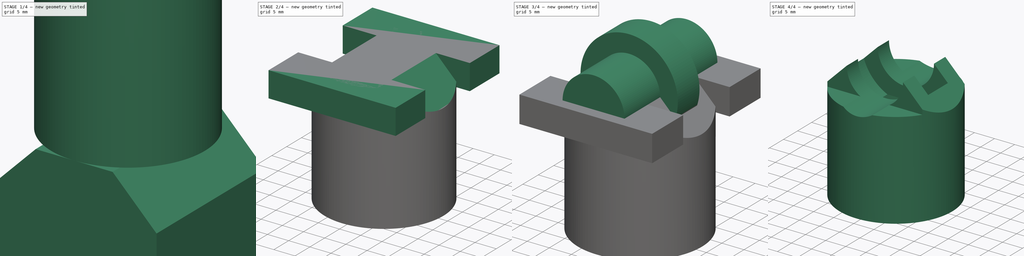
[diagram: build sequence overview — one tinted view per stage of 4, left to right]
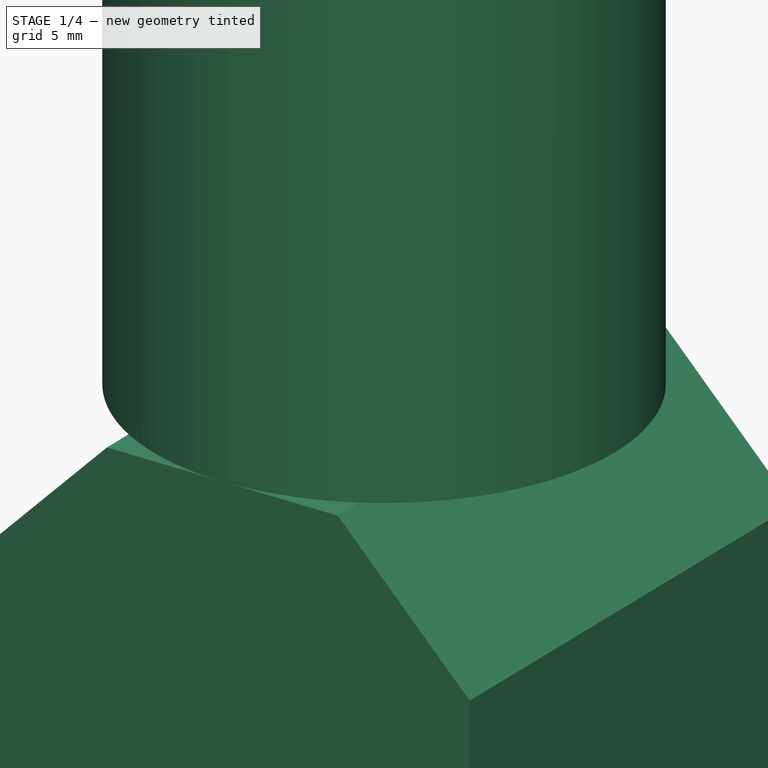
[diagram: stage 1 of 4 — iso view after this stage's code; geometry added in this stage tinted green]
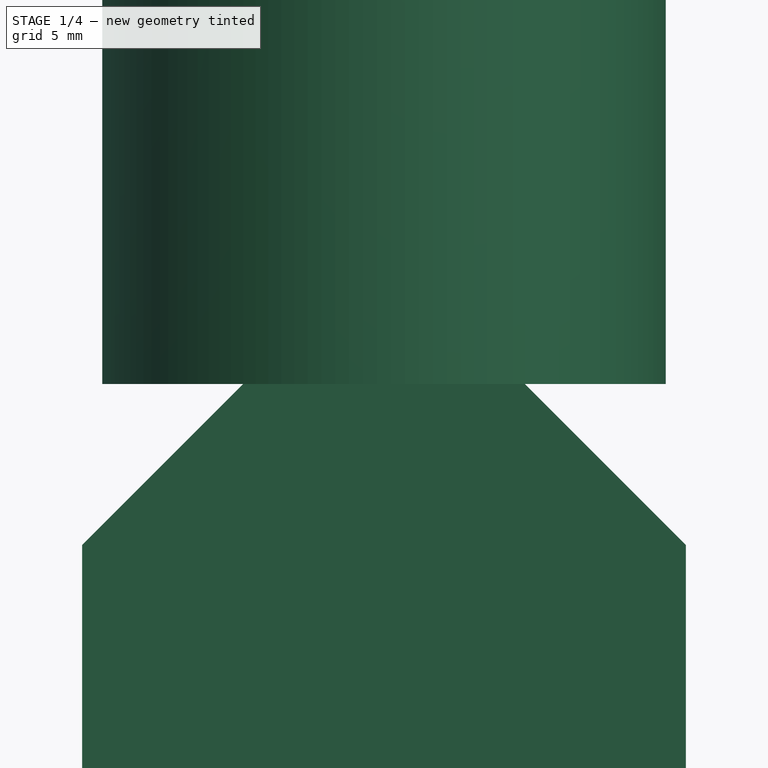
[diagram: stage 1 of 4 — front view after this stage's code; geometry added in this stage tinted green]
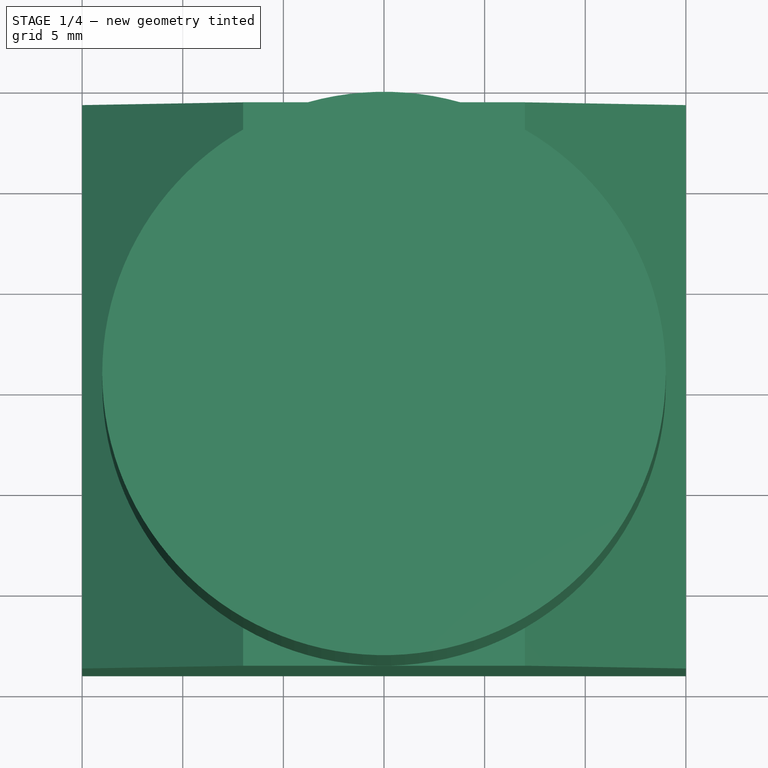
[diagram: stage 1 of 4 — top view after this stage's code; geometry added in this stage tinted green]
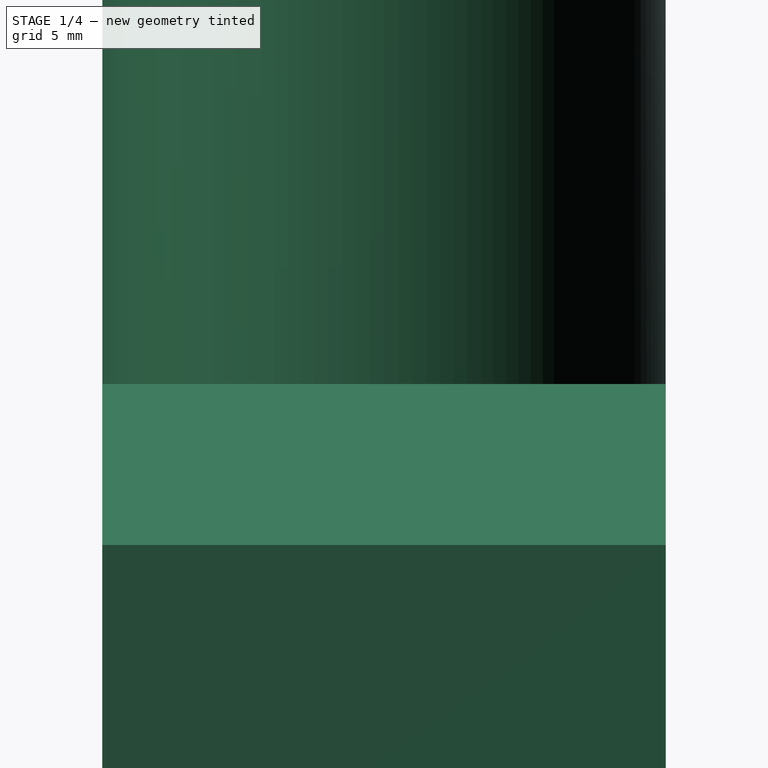
[diagram: stage 1 of 4 — right view after this stage's code; geometry added in this stage tinted green]
FCSTD DOCUMENT  (FreeCAD 0.17R13522 (Git))
Label: connector-bearing-base
License: All rights reserved
LicenseURL: http://en.wikipedia.org/wiki/All_rights_reserved
objects: Part::Cylinder×4, Part::Box×2, Part::MultiFuse×1, Sketcher::SketchObject×1, PartDesign::Pad×1, PartDesign::Body×1, Part::MultiCommon×1, Part::Cut×1
note: 13 computed .brp shape members not serialized (recipe doc carries the construction recipe); baked Part::Feature solids carry a one-line shape summary decoded from their .brp

FEATURE [Part::Cylinder] Cylinder002  label="Cylinder"
  Angle = 360
  AttacherType = Attacher::AttachEngine3D
  Height = 30
  Radius = 14
FEATURE [Sketcher::SketchObject] Sketch001
  MapMode = 5
  Placement = pos=(0,0,0) rot=(1,0,0;1.5708rad)
  Support = -> [XZ_Plane001]
  sketch-geometry (6):
    g0: LineSegment StartX=-7 StartY=0 StartZ=0 EndX=7 EndY=0 EndZ=0
    g1: LineSegment StartX=7 StartY=0 StartZ=0 EndX=15 EndY=-8 EndZ=0
    g2: LineSegment StartX=-15 StartY=-8 StartZ=0 EndX=-7 EndY=0 EndZ=0
    g3: LineSegment StartX=15 StartY=-8 StartZ=0 EndX=15 EndY=-30 EndZ=0
    g4: LineSegment StartX=15 StartY=-30 StartZ=0 EndX=-15 EndY=-30 EndZ=0
    g5: LineSegment StartX=-15 StartY=-30 StartZ=0 EndX=-15 EndY=-8 EndZ=0
  constraints (18):
    c: Coincident(g0,g1)
    c: Coincident(g2,g0)
    c: Horizontal(g0)
    c: DistanceX(g-1,g0) = 7
    c: DistanceX(g0,g0) = 14
    c: DistanceY(g0,g-1) = 0
    c: Coincident(g3,g4)
    c: Coincident(g4,g5)
    c: Horizontal(g4)
    c: Vertical(g3)
    c: Vertical(g5)
    c: Coincident(g5,g2)
    c: Coincident(g3,g1)
    c: DistanceY(g3,g0) = 30
    c: Angle(g1,g3) = 2.35619
    c: Angle(g5,g2) = 2.35619
    c: DistanceX(g4,g4) = 30
    c: DistanceY(g2,g1) = 0
FEATURE [PartDesign::Pad] Pad001
  Length = 14
  Length2 = 14
  Placement = pos=(0,0,0) rot=(1,0,0;1.5708rad)
  Profile = -> Sketch001
  Reversed = true
  Type = 4
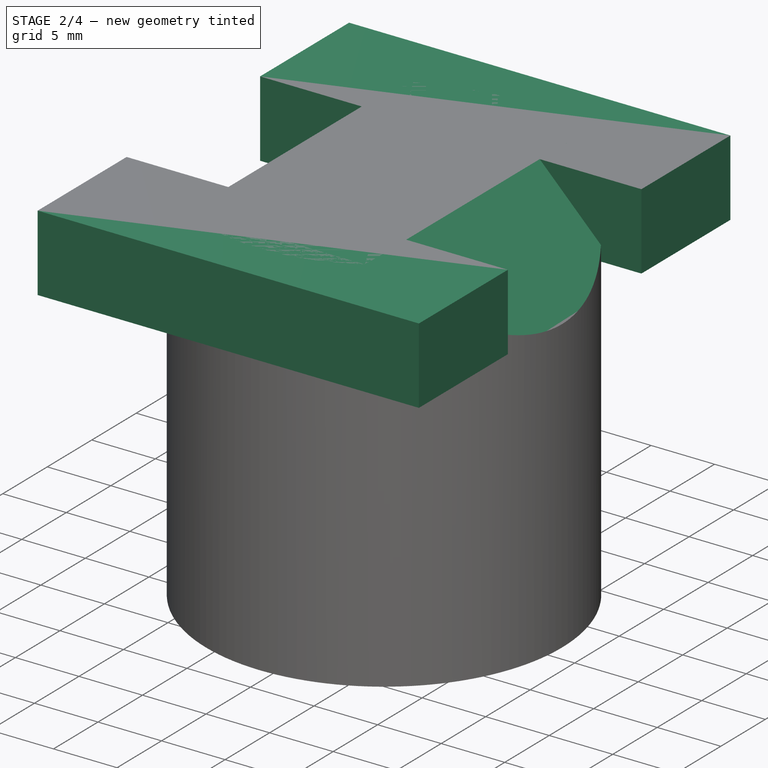
[diagram: stage 2 of 4 — iso view after this stage's code; geometry added in this stage tinted green]
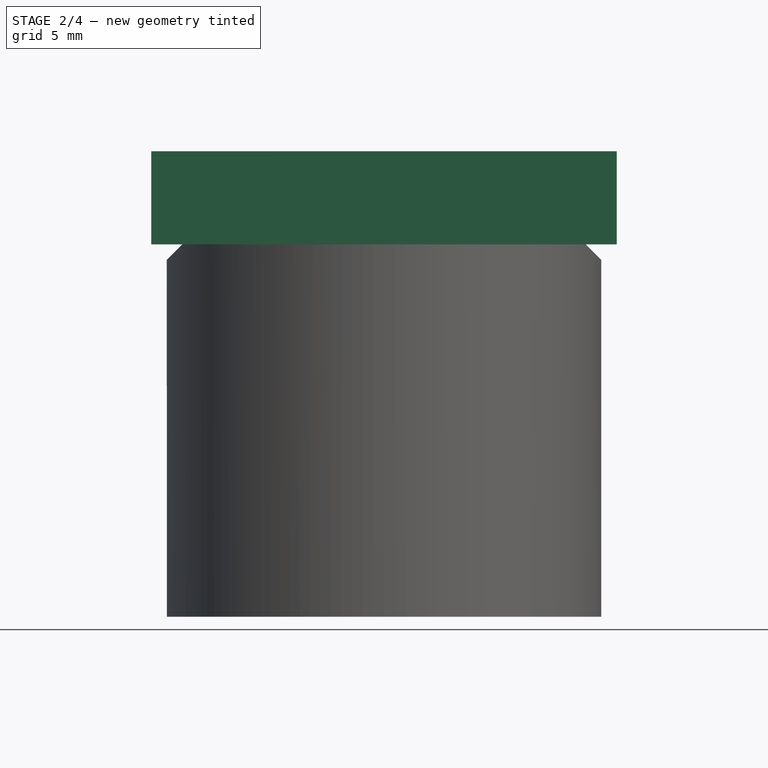
[diagram: stage 2 of 4 — front view after this stage's code; geometry added in this stage tinted green]
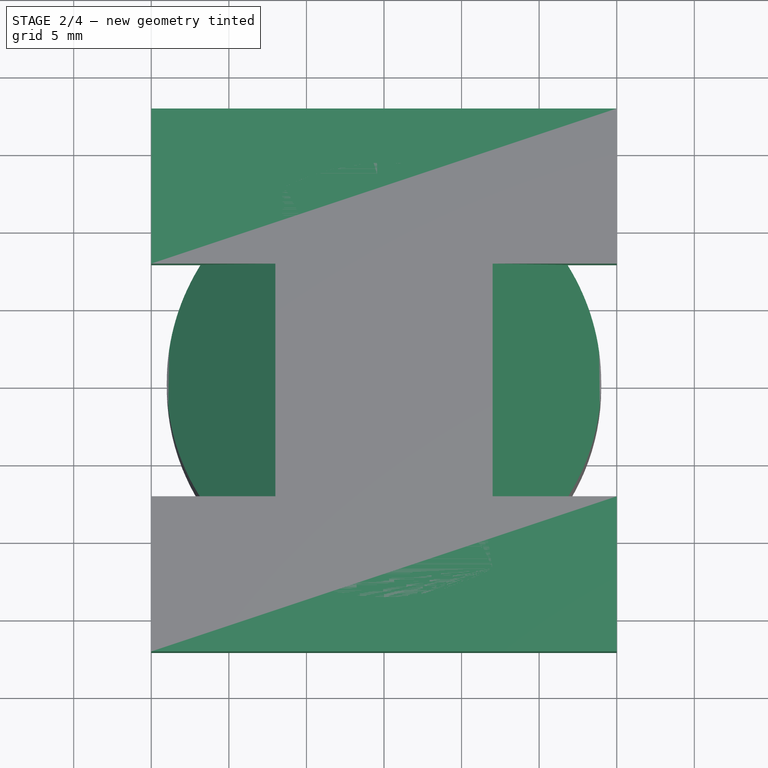
[diagram: stage 2 of 4 — top view after this stage's code; geometry added in this stage tinted green]
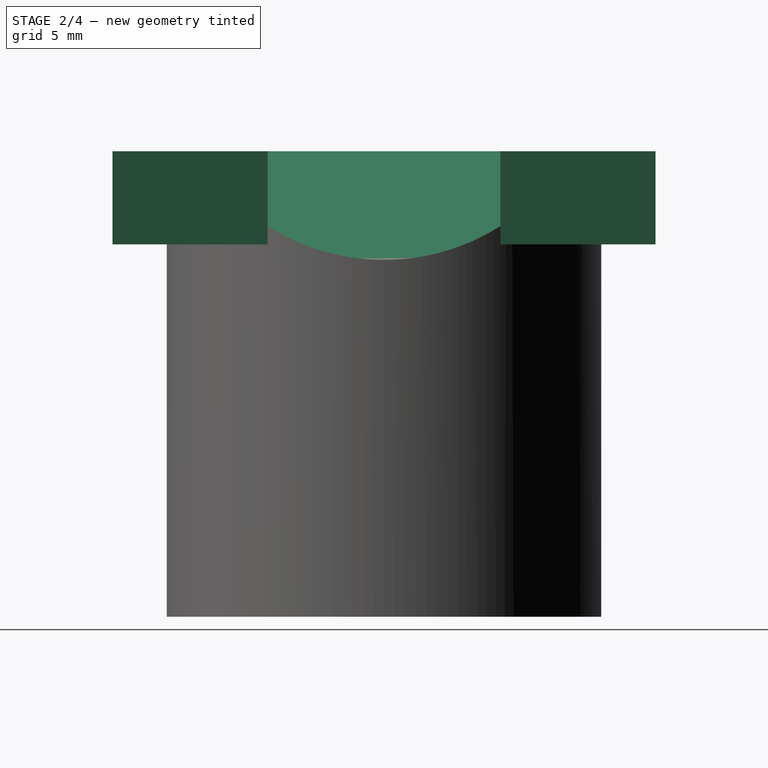
[diagram: stage 2 of 4 — right view after this stage's code; geometry added in this stage tinted green]
FEATURE [Part::Box] Box001  label="Cube001"
  AttacherType = Attacher::AttachEngine3D
  Height = 6
  Length = 30
  Placement = pos=(-15,-17.5,24) rot=(0,0,1;0rad)
  Width = 10
FEATURE [Part::Box] Box002  label="Cube002"
  AttacherType = Attacher::AttachEngine3D
  Height = 6
  Length = 30
  Placement = pos=(-15,7.5,24) rot=(0,0,1;0rad)
  Width = 10
FEATURE [PartDesign::Body] Body001
  Group = -> [Sketch001,Pad001]
  Origin = -> Origin001
  Placement = pos=(0,0,30) rot=(0,0,1;0rad)
  Tip = -> Pad001
FEATURE [Part::MultiCommon] Common
  Shapes = -> [Cylinder002,Body001]
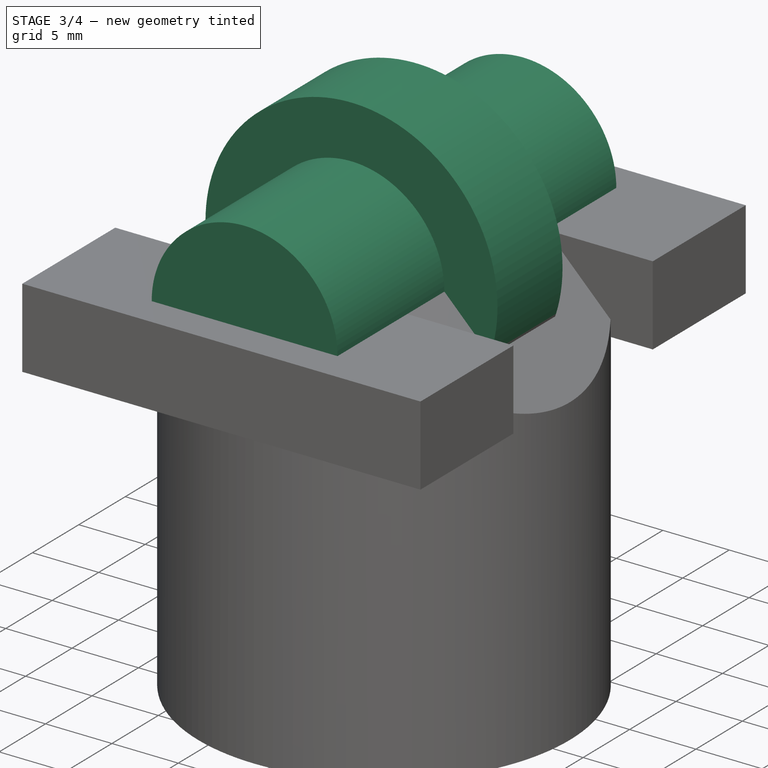
[diagram: stage 3 of 4 — iso view after this stage's code; geometry added in this stage tinted green]
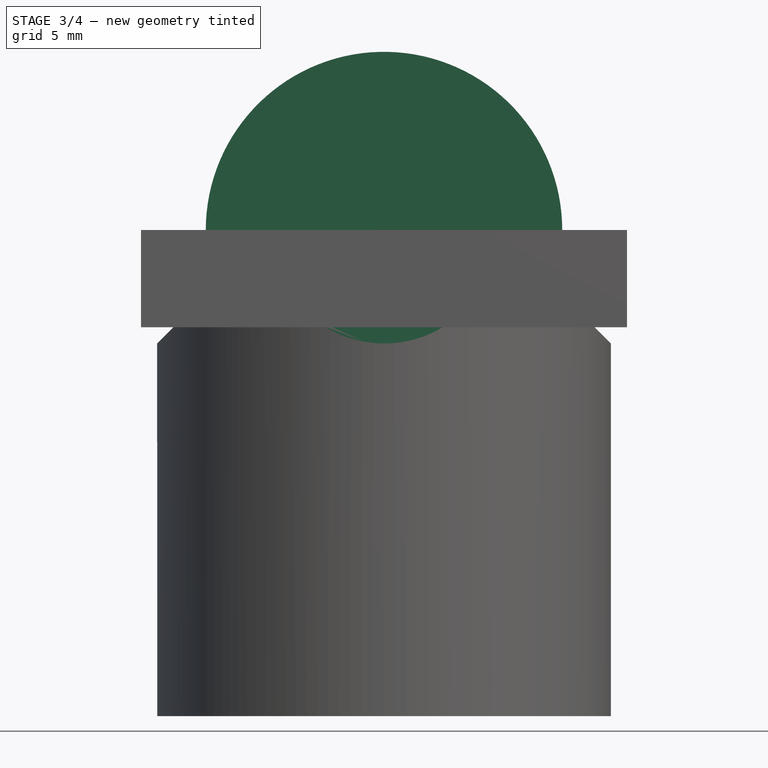
[diagram: stage 3 of 4 — front view after this stage's code; geometry added in this stage tinted green]
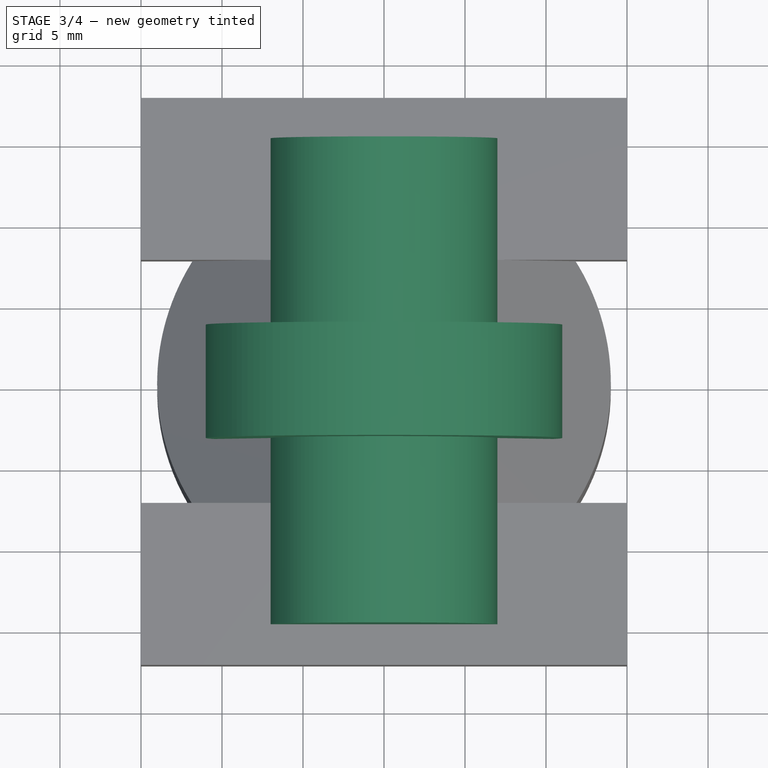
[diagram: stage 3 of 4 — top view after this stage's code; geometry added in this stage tinted green]
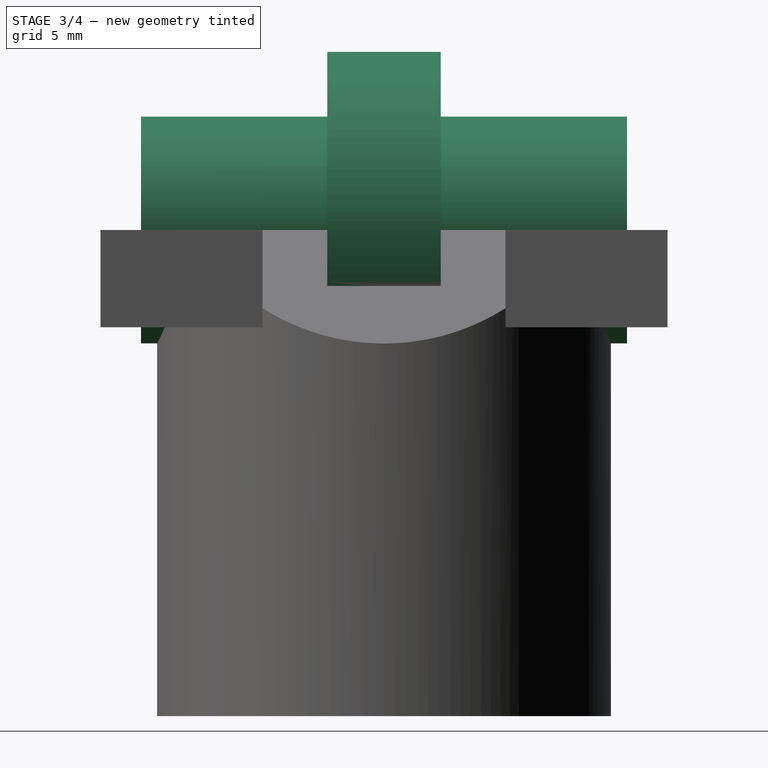
[diagram: stage 3 of 4 — right view after this stage's code; geometry added in this stage tinted green]
FEATURE [Part::Cylinder] Cylinder  label="Pipe"
  Angle = 360
  AttacherType = Attacher::AttachEngine3D
  Height = 20
  Radius = 10
FEATURE [Part::Cylinder] Cylinder001  label="Bearing"
  Angle = 360
  AttacherType = Attacher::AttachEngine3D
  Height = 7
  Placement = pos=(0,-3.5,30) rot=(0,0.707107,0.707107;3.14159rad)
  Radius = 11
FEATURE [Part::Cylinder] Cylinder003  label="Cylinder001"
  Angle = 360
  AttacherType = Attacher::AttachEngine3D
  Height = 30
  Placement = pos=(0,-15,30) rot=(-1,0,0;1.5708rad)
  Radius = 7
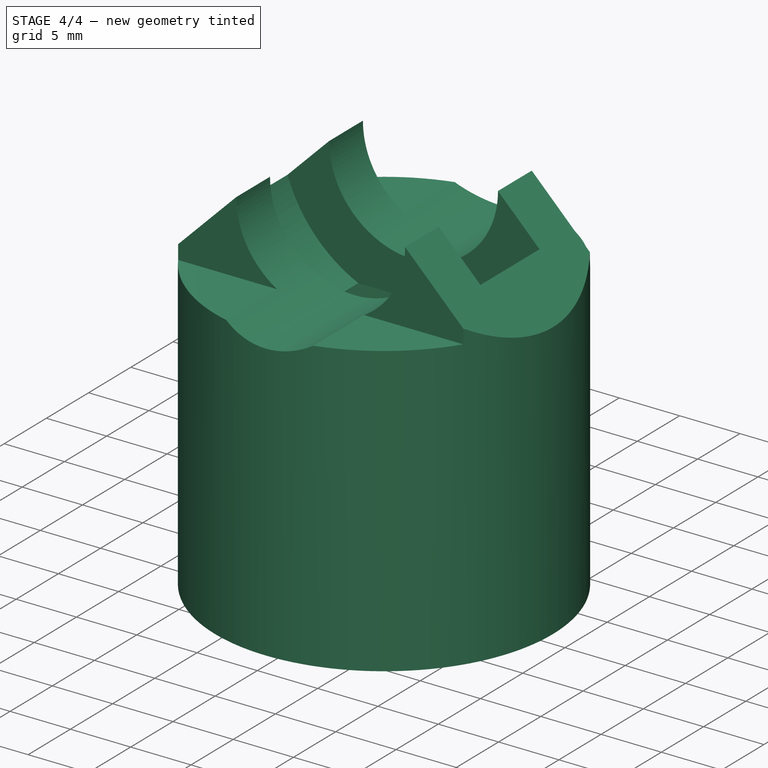
[diagram: stage 4 of 4 — iso view after this stage's code; geometry added in this stage tinted green]
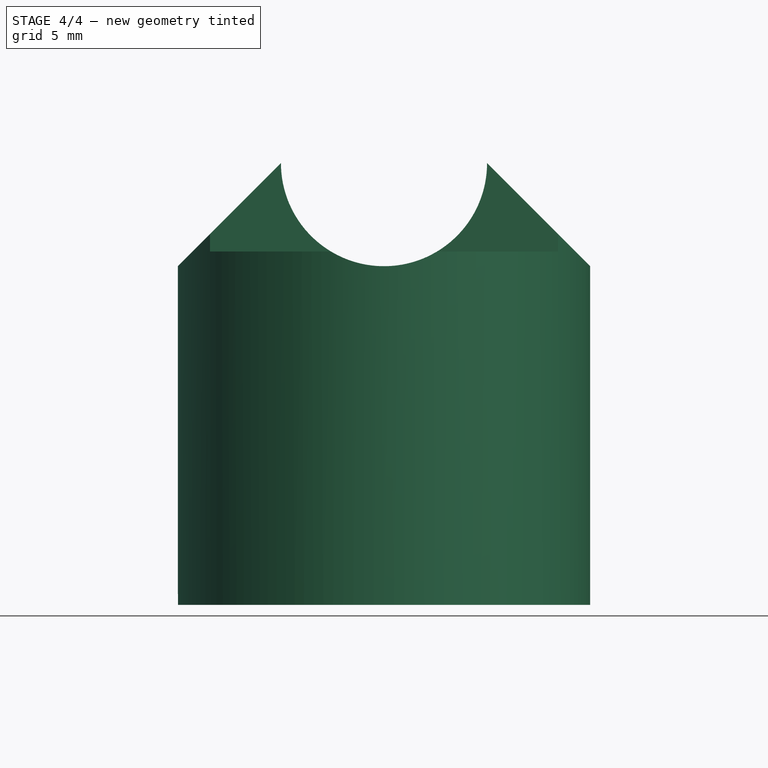
[diagram: stage 4 of 4 — front view after this stage's code; geometry added in this stage tinted green]
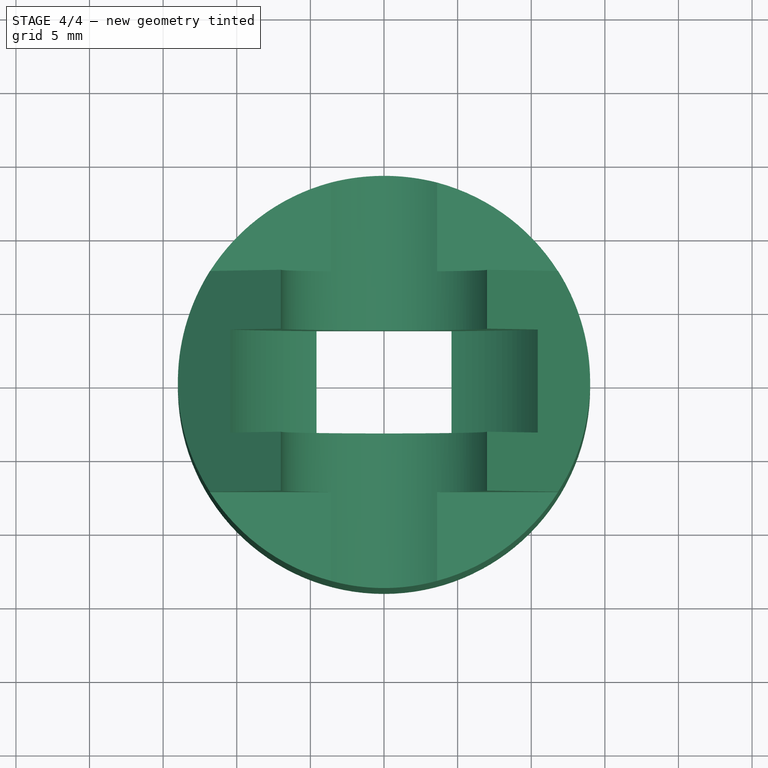
[diagram: stage 4 of 4 — top view after this stage's code; geometry added in this stage tinted green]
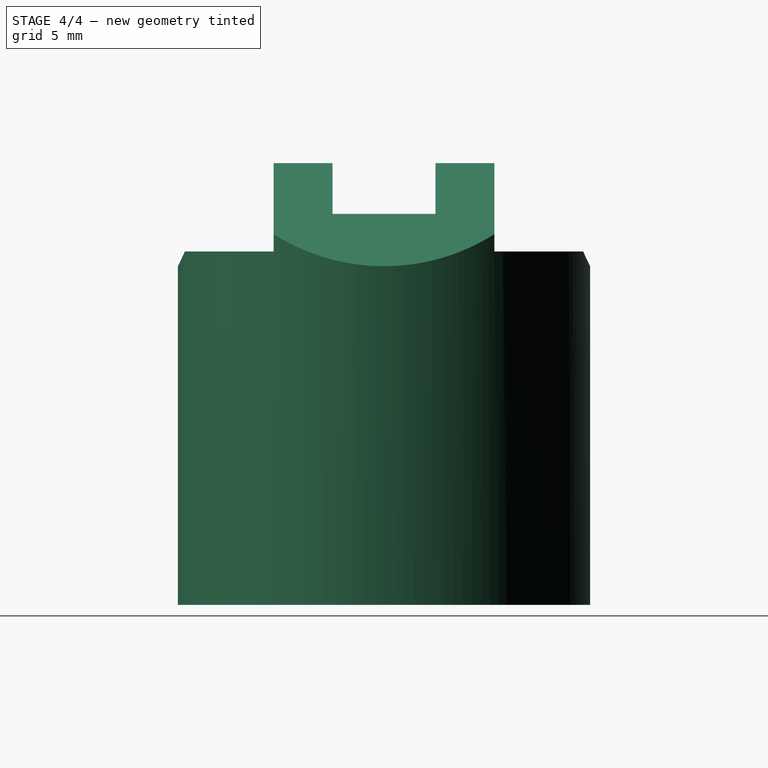
[diagram: stage 4 of 4 — right view after this stage's code; geometry added in this stage tinted green]
FEATURE [Part::MultiFuse] Fusion  label="Negative Fusion"
  Shapes = -> [Cylinder,Cylinder001,Cylinder003,Box001,Box002]
FEATURE [Part::Cut] Cut
  Base = -> Common
  Tool = -> Fusion
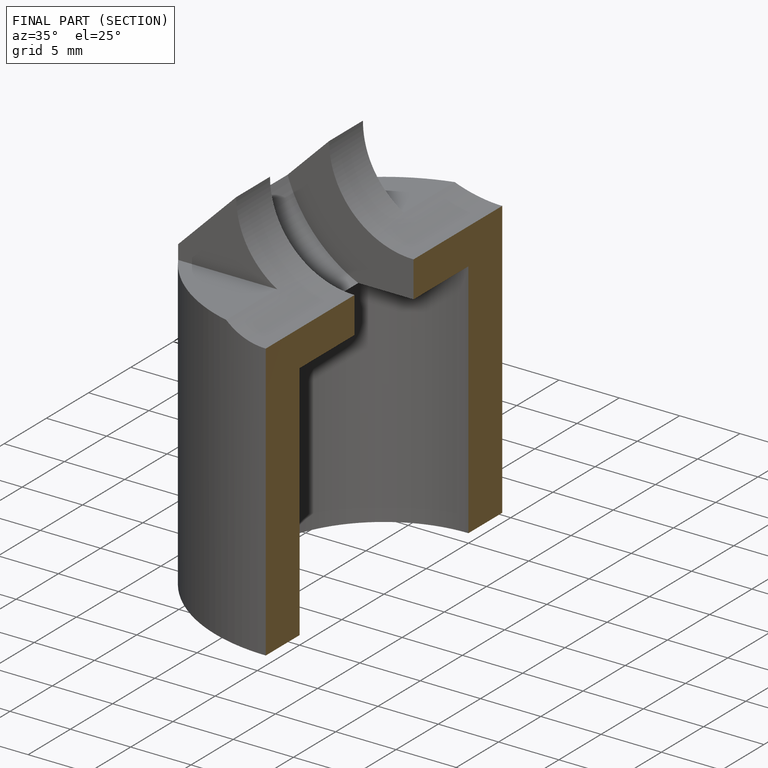
[diagram: finished part — half-section view (interior)]
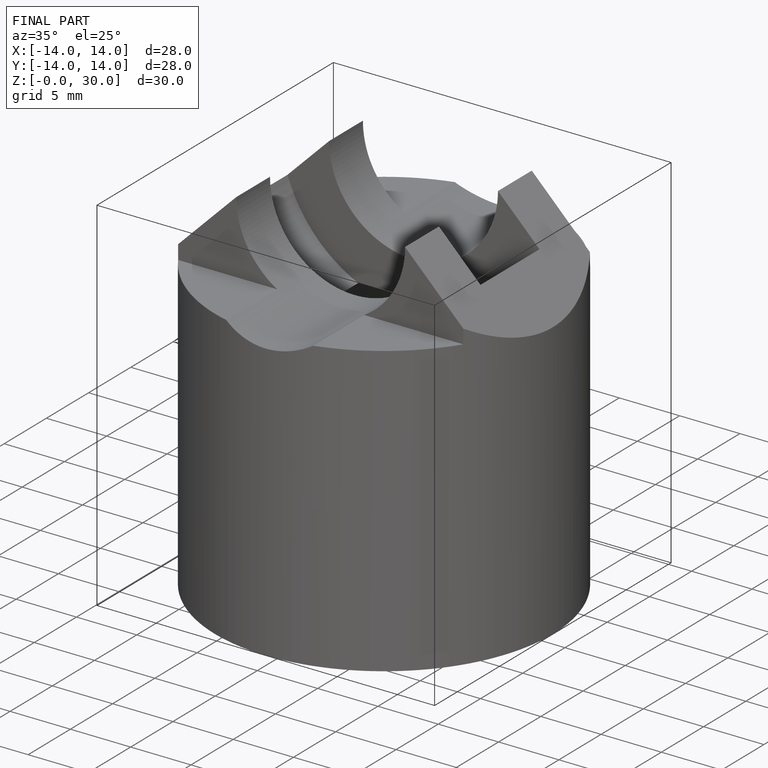
[diagram: finished part — iso view with bounding-box wireframe]
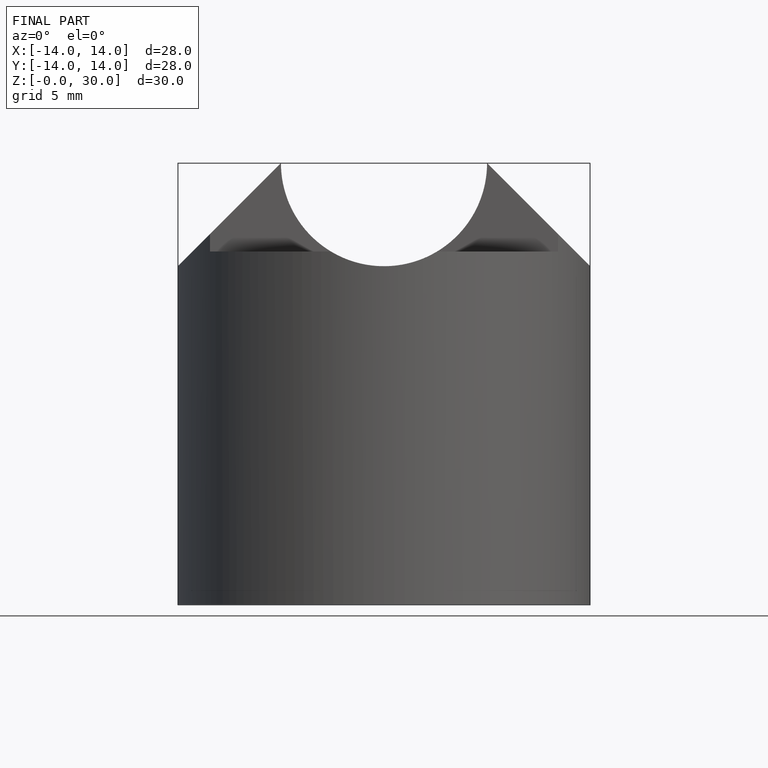
[diagram: finished part — front view with bounding-box wireframe]
